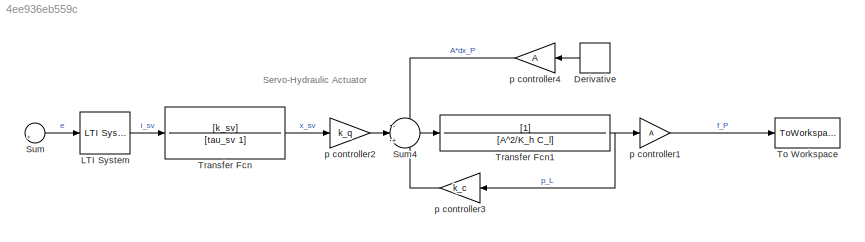
MODEL slx_4ee936eb559c
KIND model
CONFIG AbsTol = auto
CONFIG EnableMultiTasking = off
CONFIG FixedStep = t_step
CONFIG MaxStep = 1e-6
CONFIG MinStep = auto
CONFIG RelTol = 1e-6
CONFIG SampleTimeConstraint = Unconstrained
CONFIG SolverName = ode8
CONFIG StartTime = 0.0
CONFIG StopTime = 30
BLOCK [Derivative] Derivative
  NameLocation = top
BLOCK [Reference] LTI System  REF=cstblocks/LTI System
  SourceBlock = cstblocks/LTI System
  SourceType = LTI Block
BLOCK [Sum] Sum
  Inputs = |+-
BLOCK [Sum] Sum4
  Inputs = -|+|-
BLOCK [ToWorkspace] To Workspace
  FixptAsFi = on
  MaxDataPoints = inf
  SampleTime = -1
  SaveFormat = Timeseries
  VariableName = simout
BLOCK [TransferFcn] Transfer Fcn
  Denominator = [tau_sv 1]
  Numerator = [k_sv]
BLOCK [TransferFcn] Transfer Fcn1
  Denominator = [A^2/K_h C_l]
BLOCK [Gain] p controller1
  Gain = A
BLOCK [Gain] p controller2
  Gain = k_q
BLOCK [Gain] p controller3
  Gain = k_c
  NameLocation = top
BLOCK [Gain] p controller4
  Gain = A
  NameLocation = top
ANNOTATION (root): Servo-Hydraulic Actuator
LINE Derivative:1 -> p controller4:1
LINE LTI System:1 -> Transfer Fcn:1
LINE Sum4:1 -> Transfer Fcn1:1
LINE Sum:1 -> LTI System:1
NET Transfer Fcn1:1 -> p controller1:1, p controller3:1
LINE Transfer Fcn:1 -> p controller2:1
LINE p controller1:1 -> To Workspace:1
LINE p controller2:1 -> Sum4:2
LINE p controller3:1 -> Sum4:3
LINE p controller4:1 -> Sum4:1
note: NET lines group one-source signal fan-out (src -> all destinations, sorted); 1:1 wires keep LINE
